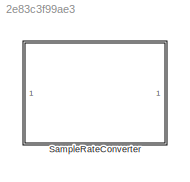
MODEL slx_2e83c3f99ae3
KIND library
CONFIG AbsTol = auto
CONFIG EnableMultiTasking = on
CONFIG FixedStep = auto
CONFIG MaxStep = auto
CONFIG MinStep = auto
CONFIG RelTol = 1e-3
CONFIG SampleTimeConstraint = Unconstrained
CONFIG SolverName = ode45
CONFIG StartTime = 0.0
CONFIG StopTime = 10.0
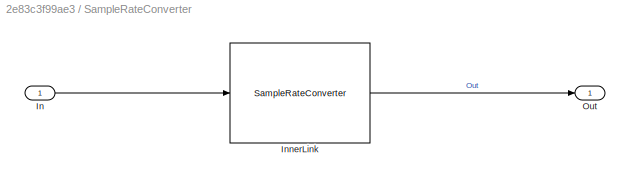
BLOCK [SubSystem] SampleRateConverter
  BlockKeywords = __PRM__SERIALIZED__DATA__:SRC
BLOCK [Inport] SampleRateConverter/In
BLOCK [Reference] SampleRateConverter/InnerLink  REF=SampleRateConverterBtc/SampleRateConverter
  SourceBlock = SampleRateConverterBtc/SampleRateConverter
  SourceProductName = Bose Blocklib
  SourceType = Blocklib SampleRateConverter
BLOCK [Outport] SampleRateConverter/Out
LINE SampleRateConverter/In:1 -> SampleRateConverter/InnerLink:1
LINE SampleRateConverter/InnerLink:1 -> SampleRateConverter/Out:1
